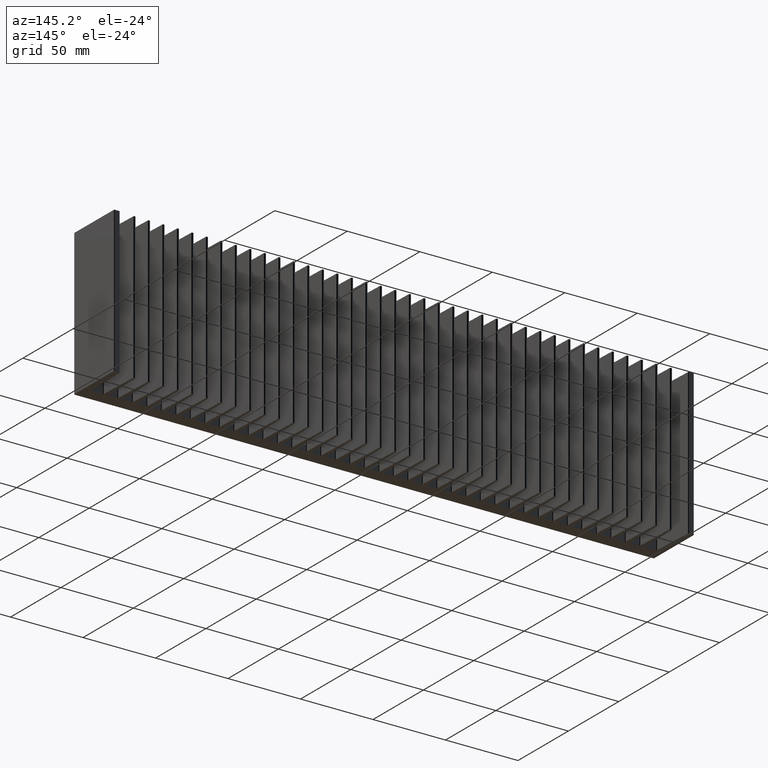
[diagram: clean part render]
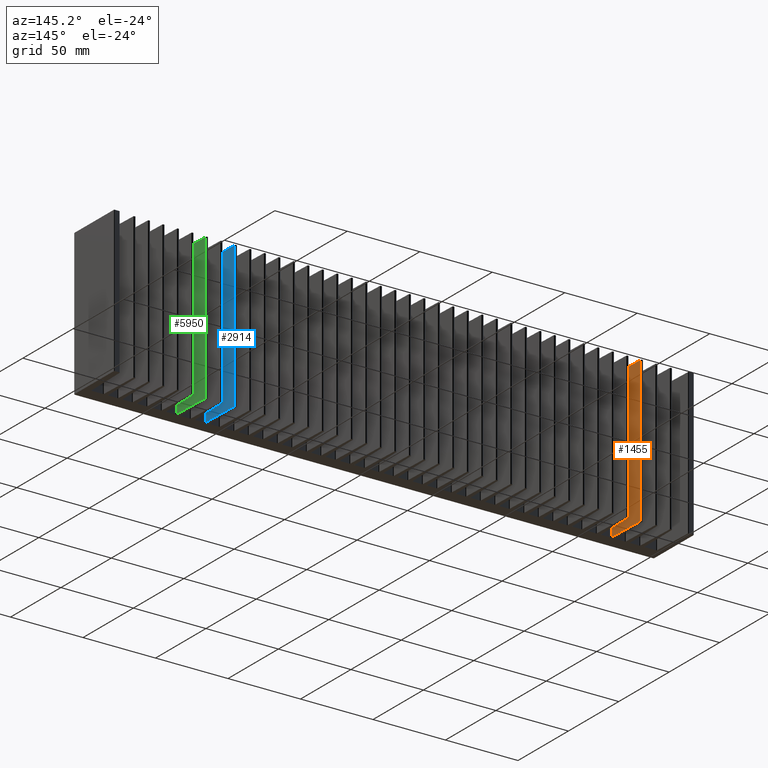
[diagram: same view with three faces highlighted in distinct colors, each labeled with its STEP entity id]
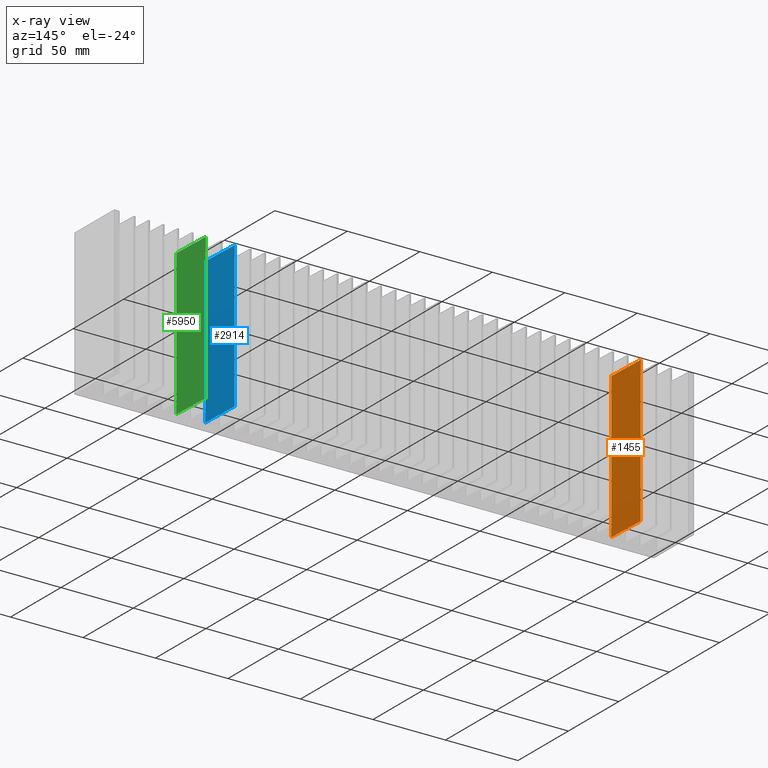
[diagram: x-ray of the same camera — body ghosted, the three highlighted faces saturated]
A machine part, auxiliary view with three faces highlighted in distinct colors.
The next image is the same camera in x-ray (body ghosted, the three faces saturated) — at least one of them is partly hidden behind the body in this view.
Their STEP definitions:

[orange] entity #1455 — the highlighted planar face has unit normal (-0.9997, -0.0258, 0).
#290 = DIRECTION ( 'NONE',  ( -0.000000000000000000, -0.000000000000000000, -1.000000000000000000 ) ) ;
#344 = DIRECTION ( 'NONE',  ( -0.02580036738941126478, 0.9996671151151123036, -0.000000000000000000 ) ) ;
#711 = VERTEX_POINT ( 'NONE', #2365 ) ;
#1416 = PLANE ( 'NONE',  #3778 ) ;
#1455 = ADVANCED_FACE ( 'NONE', ( #4646 ), #1416, .F. ) ;
#1467 = ORIENTED_EDGE ( 'NONE', *, *, #6984, .F. ) ;
#2000 = ORIENTED_EDGE ( 'NONE', *, *, #5181, .T. ) ;
#2013 = CARTESIAN_POINT ( 'NONE',  ( 75.19520423463724512, 201.7858264414857103, 100.0000000000000000 ) ) ;
#2097 = LINE ( 'NONE', #2013, #7374 ) ;
#2173 = DIRECTION ( 'NONE',  ( -0.000000000000000000, -0.000000000000000000, -1.000000000000000000 ) ) ;
#2365 = CARTESIAN_POINT ( 'NONE',  ( 75.19520423463724512, 201.7858264414857103, 0.000000000000000000 ) ) ;
#2676 = VERTEX_POINT ( 'NONE', #5811 ) ;
#3778 = AXIS2_PLACEMENT_3D ( 'NONE', #5241, #5968, #7847 ) ;
#4088 = LINE ( 'NONE', #8012, #4816 ) ;
#4646 = FACE_OUTER_BOUND ( 'NONE', #6436, .T. ) ;
#4683 = DIRECTION ( 'NONE',  ( -0.02580036738941126478, 0.9996671151151123036, -0.000000000000000000 ) ) ;
#4816 = VECTOR ( 'NONE', #2173, 1000.000000000000000 ) ;
#5181 = EDGE_CURVE ( 'NONE', #6526, #7944, #4088, .T. ) ;
#5241 = CARTESIAN_POINT ( 'NONE',  ( 75.19520423463724512, 201.7858264414857103, 100.0000000000000000 ) ) ;
#5568 = CARTESIAN_POINT ( 'NONE',  ( 75.19520423463724512, 201.7858264414857103, 0.000000000000000000 ) ) ;
#5754 = LINE ( 'NONE', #7687, #6401 ) ;
#5811 = CARTESIAN_POINT ( 'NONE',  ( 75.19520423463724512, 201.7858264414857103, 100.0000000000000000 ) ) ;
#5968 = DIRECTION ( 'NONE',  ( -0.9996671151151124146, -0.02580036738941126825, 0.000000000000000000 ) ) ;
#6171 = LINE ( 'NONE', #5568, #6696 ) ;
#6401 = VECTOR ( 'NONE', #290, 1000.000000000000000 ) ;
#6436 = EDGE_LOOP ( 'NONE', ( #8161, #6993, #1467, #2000 ) ) ;
#6526 = VERTEX_POINT ( 'NONE', #7820 ) ;
#6696 = VECTOR ( 'NONE', #344, 1000.000000000000114 ) ;
#6790 = EDGE_CURVE ( 'NONE', #2676, #711, #5754, .T. ) ;
#6984 = EDGE_CURVE ( 'NONE', #6526, #2676, #2097, .T. ) ;
#6993 = ORIENTED_EDGE ( 'NONE', *, *, #6790, .F. ) ;
#7374 = VECTOR ( 'NONE', #4683, 1000.000000000000114 ) ;
#7613 = CARTESIAN_POINT ( 'NONE',  ( 75.91223519216067928, 174.0035759821427916, 0.000000000000000000 ) ) ;
#7652 = EDGE_CURVE ( 'NONE', #7944, #711, #6171, .T. ) ;
#7687 = CARTESIAN_POINT ( 'NONE',  ( 75.19520423463724512, 201.7858264414857103, 100.0000000000000000 ) ) ;
#7820 = CARTESIAN_POINT ( 'NONE',  ( 75.91223519216067928, 174.0035759821427916, 100.0000000000000000 ) ) ;
#7847 = DIRECTION ( 'NONE',  ( 0.02580036738941126478, -0.9996671151151123036, 0.000000000000000000 ) ) ;
#7944 = VERTEX_POINT ( 'NONE', #7613 ) ;
#8012 = CARTESIAN_POINT ( 'NONE',  ( 75.91223519216067928, 174.0035759821427916, 100.0000000000000000 ) ) ;
#8161 = ORIENTED_EDGE ( 'NONE', *, *, #7652, .T. ) ;

[blue] entity #2914 — the highlighted planar face has unit normal (-0.9997, -0.0258, 0).
#190 = VERTEX_POINT ( 'NONE', #3497 ) ;
#437 = EDGE_CURVE ( 'NONE', #3641, #190, #5819, .T. ) ;
#717 = VECTOR ( 'NONE', #1121, 1000.000000000000000 ) ;
#1121 = DIRECTION ( 'NONE',  ( -0.000000000000000000, -0.000000000000000000, -1.000000000000000000 ) ) ;
#1687 = PLANE ( 'NONE',  #7013 ) ;
#2088 = CARTESIAN_POINT ( 'NONE',  ( 355.1952042356152219, 201.7858264414144003, 100.0000000000000000 ) ) ;
#2284 = CARTESIAN_POINT ( 'NONE',  ( 355.1952042356152219, 201.7858264414144003, 100.0000000000000000 ) ) ;
#2914 = ADVANCED_FACE ( 'NONE', ( #6953 ), #1687, .F. ) ;
#3497 = CARTESIAN_POINT ( 'NONE',  ( 355.1952042356152219, 201.7858264414144003, 0.000000000000000000 ) ) ;
#3641 = VERTEX_POINT ( 'NONE', #8063 ) ;
#3827 = CARTESIAN_POINT ( 'NONE',  ( 355.1952042356152219, 201.7858264414144003, 100.0000000000000000 ) ) ;
#4086 = CARTESIAN_POINT ( 'NONE',  ( 355.9122351931376897, 174.0035759821427916, 100.0000000000000000 ) ) ;
#4207 = VERTEX_POINT ( 'NONE', #6361 ) ;
#4350 = LINE ( 'NONE', #6944, #717 ) ;
#4468 = CARTESIAN_POINT ( 'NONE',  ( 355.1952042356152219, 201.7858264414144003, 0.000000000000000000 ) ) ;
#4541 = EDGE_CURVE ( 'NONE', #6300, #4207, #4350, .T. ) ;
#4673 = DIRECTION ( 'NONE',  ( -0.02580036738944201102, 0.9996671151151116375, -0.000000000000000000 ) ) ;
#5081 = EDGE_CURVE ( 'NONE', #4207, #190, #7793, .T. ) ;
#5096 = DIRECTION ( 'NONE',  ( -0.000000000000000000, -0.000000000000000000, -1.000000000000000000 ) ) ;
#5213 = EDGE_CURVE ( 'NONE', #6300, #3641, #7921, .T. ) ;
#5819 = LINE ( 'NONE', #3827, #7015 ) ;
#6126 = ORIENTED_EDGE ( 'NONE', *, *, #5081, .T. ) ;
#6236 = DIRECTION ( 'NONE',  ( 0.02580036738944201449, -0.9996671151151116375, 0.000000000000000000 ) ) ;
#6300 = VERTEX_POINT ( 'NONE', #4086 ) ;
#6314 = DIRECTION ( 'NONE',  ( -0.9996671151151116375, -0.02580036738944201449, 0.000000000000000000 ) ) ;
#6361 = CARTESIAN_POINT ( 'NONE',  ( 355.9122351931376897, 174.0035759821427916, 0.000000000000000000 ) ) ;
#6630 = ORIENTED_EDGE ( 'NONE', *, *, #437, .F. ) ;
#6868 = ORIENTED_EDGE ( 'NONE', *, *, #5213, .F. ) ;
#6944 = CARTESIAN_POINT ( 'NONE',  ( 355.9122351931376897, 174.0035759821427916, 100.0000000000000000 ) ) ;
#6953 = FACE_OUTER_BOUND ( 'NONE', #7192, .T. ) ;
#7013 = AXIS2_PLACEMENT_3D ( 'NONE', #2284, #6314, #6236 ) ;
#7015 = VECTOR ( 'NONE', #5096, 1000.000000000000000 ) ;
#7078 = VECTOR ( 'NONE', #4673, 1000.000000000000000 ) ;
#7128 = ORIENTED_EDGE ( 'NONE', *, *, #4541, .T. ) ;
#7144 = DIRECTION ( 'NONE',  ( -0.02580036738944201102, 0.9996671151151116375, -0.000000000000000000 ) ) ;
#7192 = EDGE_LOOP ( 'NONE', ( #6126, #6630, #6868, #7128 ) ) ;
#7793 = LINE ( 'NONE', #4468, #7996 ) ;
#7921 = LINE ( 'NONE', #2088, #7078 ) ;
#7996 = VECTOR ( 'NONE', #7144, 1000.000000000000000 ) ;
#8063 = CARTESIAN_POINT ( 'NONE',  ( 355.1952042356152219, 201.7858264414144003, 100.0000000000000000 ) ) ;

[green] entity #5950 — the highlighted planar face has unit normal (-0.9997, -0.0258, 0).
#59 = ORIENTED_EDGE ( 'NONE', *, *, #5005, .T. ) ;
#183 = LINE ( 'NONE', #5877, #7164 ) ;
#394 = VERTEX_POINT ( 'NONE', #3993 ) ;
#1106 = DIRECTION ( 'NONE',  ( 0.02580036738941289196, -0.9996671151151124146, 0.000000000000000000 ) ) ;
#1277 = LINE ( 'NONE', #2466, #5615 ) ;
#1337 = DIRECTION ( 'NONE',  ( -0.02580036738941289196, 0.9996671151151123036, -0.000000000000000000 ) ) ;
#1670 = PLANE ( 'NONE',  #3964 ) ;
#2353 = VERTEX_POINT ( 'NONE', #3401 ) ;
#2466 = CARTESIAN_POINT ( 'NONE',  ( 375.1952042356851962, 201.7858264414092275, 0.000000000000000000 ) ) ;
#2640 = DIRECTION ( 'NONE',  ( -0.000000000000000000, -0.000000000000000000, -1.000000000000000000 ) ) ;
#2982 = EDGE_CURVE ( 'NONE', #394, #3980, #4525, .T. ) ;
#3105 = FACE_OUTER_BOUND ( 'NONE', #6174, .T. ) ;
#3150 = DIRECTION ( 'NONE',  ( -0.02580036738941289196, 0.9996671151151123036, -0.000000000000000000 ) ) ;
#3401 = CARTESIAN_POINT ( 'NONE',  ( 375.9122351932066977, 174.0035759821427916, 0.000000000000000000 ) ) ;
#3565 = EDGE_CURVE ( 'NONE', #394, #2353, #183, .T. ) ;
#3964 = AXIS2_PLACEMENT_3D ( 'NONE', #4897, #5018, #1106 ) ;
#3980 = VERTEX_POINT ( 'NONE', #5905 ) ;
#3987 = ORIENTED_EDGE ( 'NONE', *, *, #8019, .F. ) ;
#3993 = CARTESIAN_POINT ( 'NONE',  ( 375.9122351932066977, 174.0035759821427916, 100.0000000000000000 ) ) ;
#4255 = VECTOR ( 'NONE', #6278, 1000.000000000000000 ) ;
#4525 = LINE ( 'NONE', #8410, #6601 ) ;
#4654 = VERTEX_POINT ( 'NONE', #5753 ) ;
#4897 = CARTESIAN_POINT ( 'NONE',  ( 375.1952042356851962, 201.7858264414092275, 100.0000000000000000 ) ) ;
#5005 = EDGE_CURVE ( 'NONE', #2353, #4654, #1277, .T. ) ;
#5018 = DIRECTION ( 'NONE',  ( -0.9996671151151124146, -0.02580036738941289196, 0.000000000000000000 ) ) ;
#5615 = VECTOR ( 'NONE', #3150, 1000.000000000000114 ) ;
#5753 = CARTESIAN_POINT ( 'NONE',  ( 375.1952042356851962, 201.7858264414092275, 0.000000000000000000 ) ) ;
#5877 = CARTESIAN_POINT ( 'NONE',  ( 375.9122351932066977, 174.0035759821427916, 100.0000000000000000 ) ) ;
#5905 = CARTESIAN_POINT ( 'NONE',  ( 375.1952042356851962, 201.7858264414092275, 100.0000000000000000 ) ) ;
#5950 = ADVANCED_FACE ( 'NONE', ( #3105 ), #1670, .F. ) ;
#6161 = CARTESIAN_POINT ( 'NONE',  ( 375.1952042356851962, 201.7858264414092275, 100.0000000000000000 ) ) ;
#6174 = EDGE_LOOP ( 'NONE', ( #59, #3987, #8010, #8290 ) ) ;
#6193 = LINE ( 'NONE', #6161, #4255 ) ;
#6278 = DIRECTION ( 'NONE',  ( -0.000000000000000000, -0.000000000000000000, -1.000000000000000000 ) ) ;
#6601 = VECTOR ( 'NONE', #1337, 1000.000000000000114 ) ;
#7164 = VECTOR ( 'NONE', #2640, 1000.000000000000000 ) ;
#8010 = ORIENTED_EDGE ( 'NONE', *, *, #2982, .F. ) ;
#8019 = EDGE_CURVE ( 'NONE', #3980, #4654, #6193, .T. ) ;
#8290 = ORIENTED_EDGE ( 'NONE', *, *, #3565, .T. ) ;
#8410 = CARTESIAN_POINT ( 'NONE',  ( 375.1952042356851962, 201.7858264414092275, 100.0000000000000000 ) ) ;